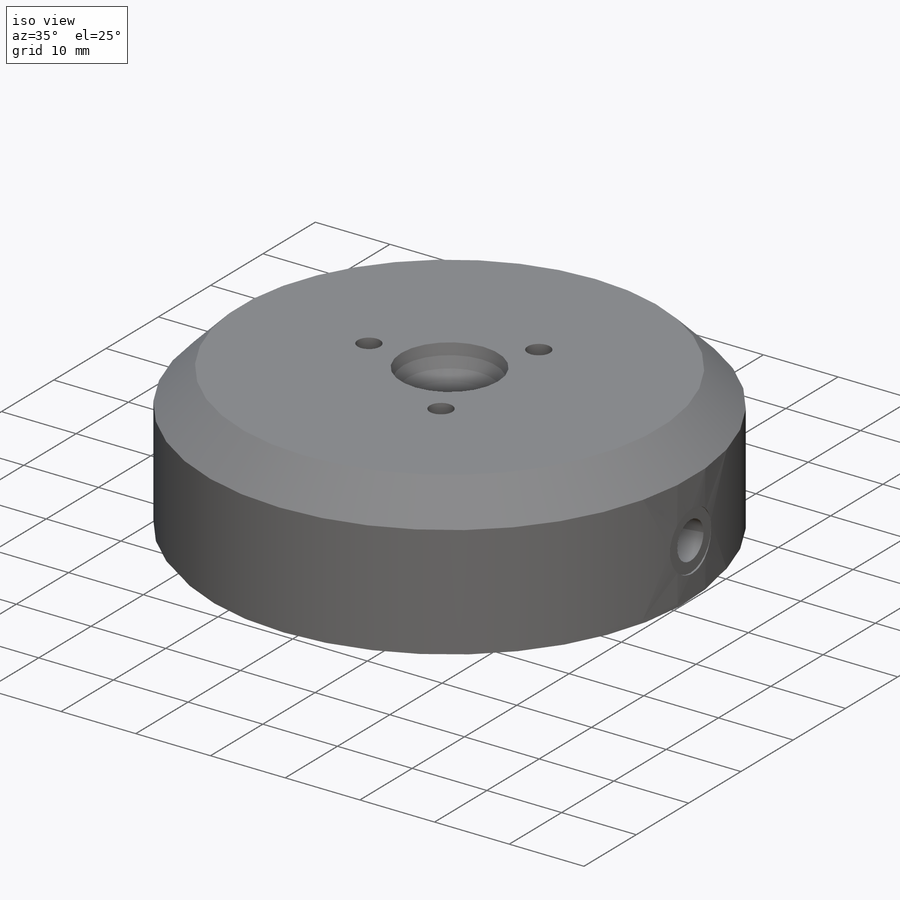
[diagram: iso view]
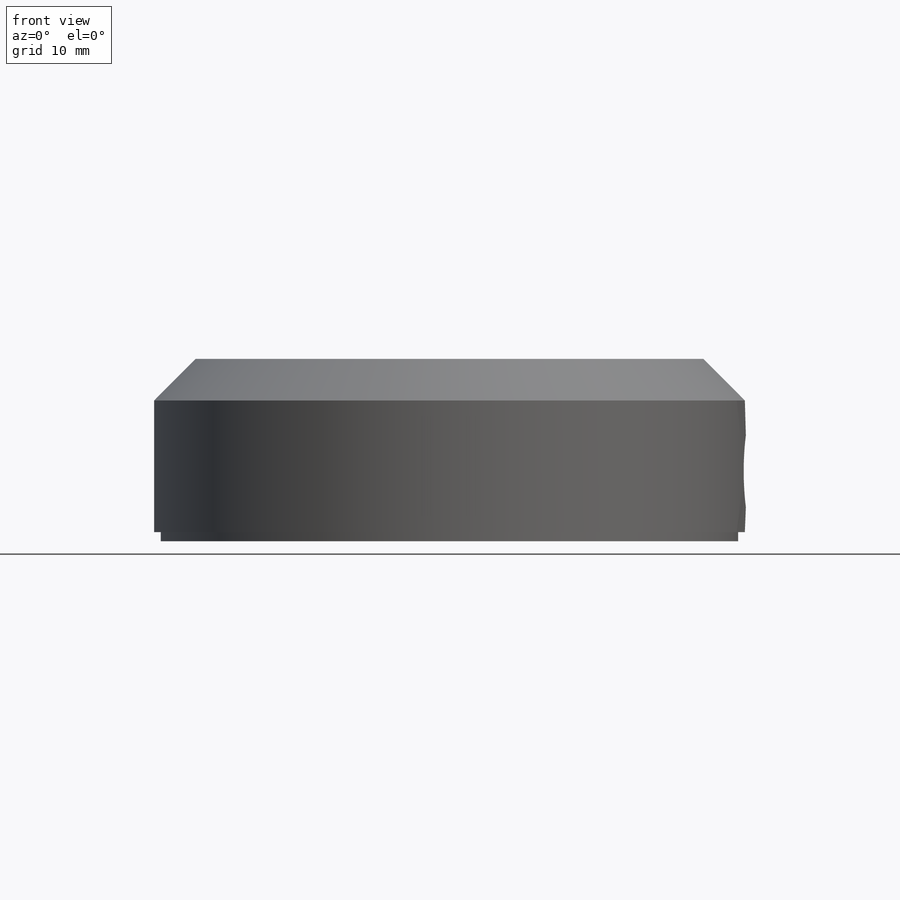
[diagram: front view]
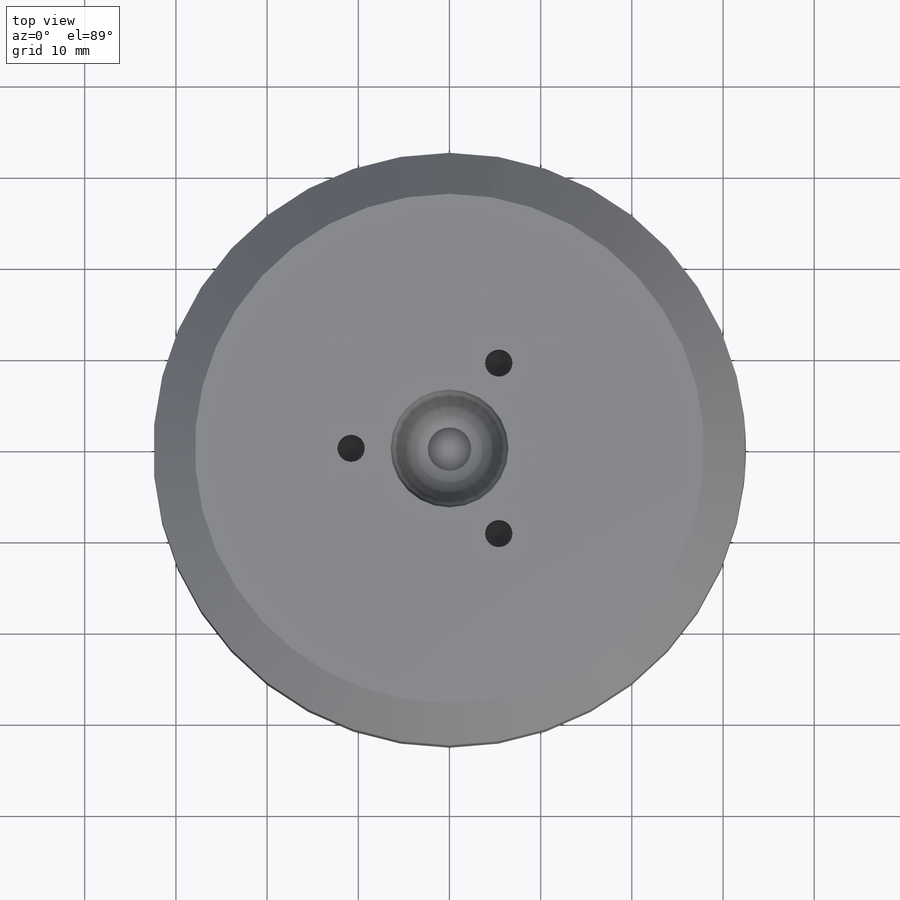
[diagram: top view]
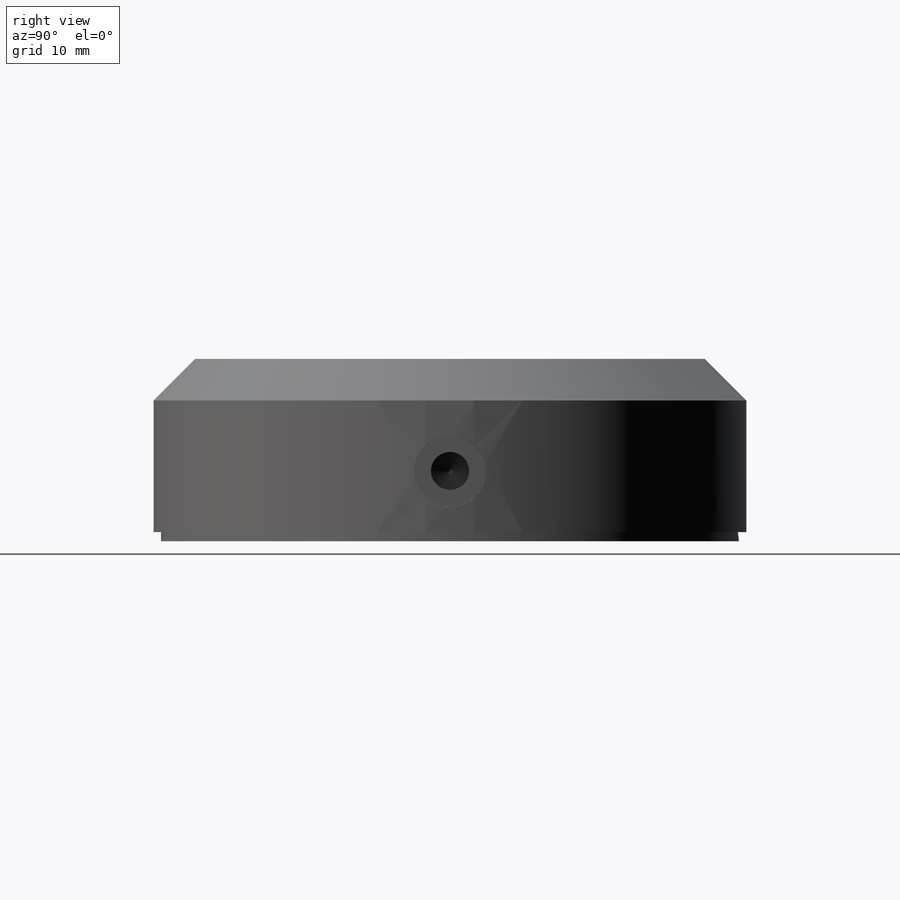
[diagram: right view]
SOLIDWORKS PART (.sldprt)
format: sldprt  version: not decoded by parser v0  size: 299,520 bytes
history: native  units: mm
features: sketch x10, hole x3, extrude x2, material x1, cut_revolve x1, chamfer x1 (+15 scaffold rows collapsed)
feature tree (33):
  scaffold x15  (default folders/planes/origin — collapsed)
  material  "6061 Alloy"
  sketch  "Sketch1"  dims[D1=65.0mm]
  extrude  "Extrude1"  Depth=18.9992mm
  sketch  "Sketch2"  dims[D1=63.373mm]
  sketch  "Sketch3"  dims[c1.D1=6.5024mm c1.D2=0.508mm c1.D3=2.3876mm c1.D4=6.2484mm c1.D5=32.512mm c1.D6=5.0927mm c1.D7=13.9827mm c1.D8=22.8727mm c1.D9=3.81mm c1.D10=3.81mm c1.D11=3.81mm c1.D12=13.6652mm c1.D13=~3.042534mm c2.D3=2.3876mm]
  cut_revolve  "Cut-Revolve1"  Angle=360deg
  chamfer  "Chamfer1"  Distance=4.57mm Angle=45deg
  sketch  "Sketch4"  dims[c1.D1=~30.992893mm c1.D2=~28.118584mm c2.D2=120.0deg c2.D3=~30.992893mm c3.D3=120.0deg c3.D4=~1.177835mm]
  hole  "M3x0.5 Tapped Hole3"  Diameter=2.5mm Depth=7.8486mm
  sketch  "Sketch10"
  sketch  "Sketch9"  dims[hole-wizard template sketch: 29 standard entries collapsed; hole parameters kept: c8.Tap Drill Depth=7.8486mm c8.Thread Major Dia.=3.0mm c8.Thread Depth=6.35mm c8.D5=~14.816244mm c8.Drill Angle=118.0deg]
  hole  "M5x0.8 Tapped Hole1"  Diameter=4.2mm Depth=27.94mm
  sketch  "3DSketch1"  dims[D1=12.319mm]
  sketch  "Sketch11"  dims[hole-wizard template sketch: 29 standard entries collapsed; hole parameters kept: c8.Tap Drill Depth=27.94mm c8.Thread Major Dia.=5.0mm c8.Thread Depth=7.62mm c8.D5=~14.816244mm c8.Drill Angle=118.0deg]
  hole  "Hole1"  Diameter=20mm Depth=100mm
  sketch  "3DSketch2"
  sketch  "Sketch13"  dims[c1.Hole Ø=20.0mm c1.Depth=100.0mm c1.Drill Angle=118.0deg c1.C.Sink Angle=90.0deg c1.C.Bore Ø=40.0mm c1.C.Bore Depth=20.0mm c1.Diameter=3.048mm c2.Depth=6.35mm c2.C-Bore Diameter=7.874mm c2.C-Bore Depth=0.254mm c2.Drill Angle=118.0deg]
  extrude  "Extrude2"  Depth=1.00076mm
decode coverage: 15 of 17 modeling features carry decoded parameters
note: ~ marks probable driven/reference dimensions
note: suppression state not decoded; provenance and decode notes live in map.json
